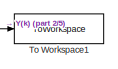
[diagram: root canvas - part 1/5, top right region]
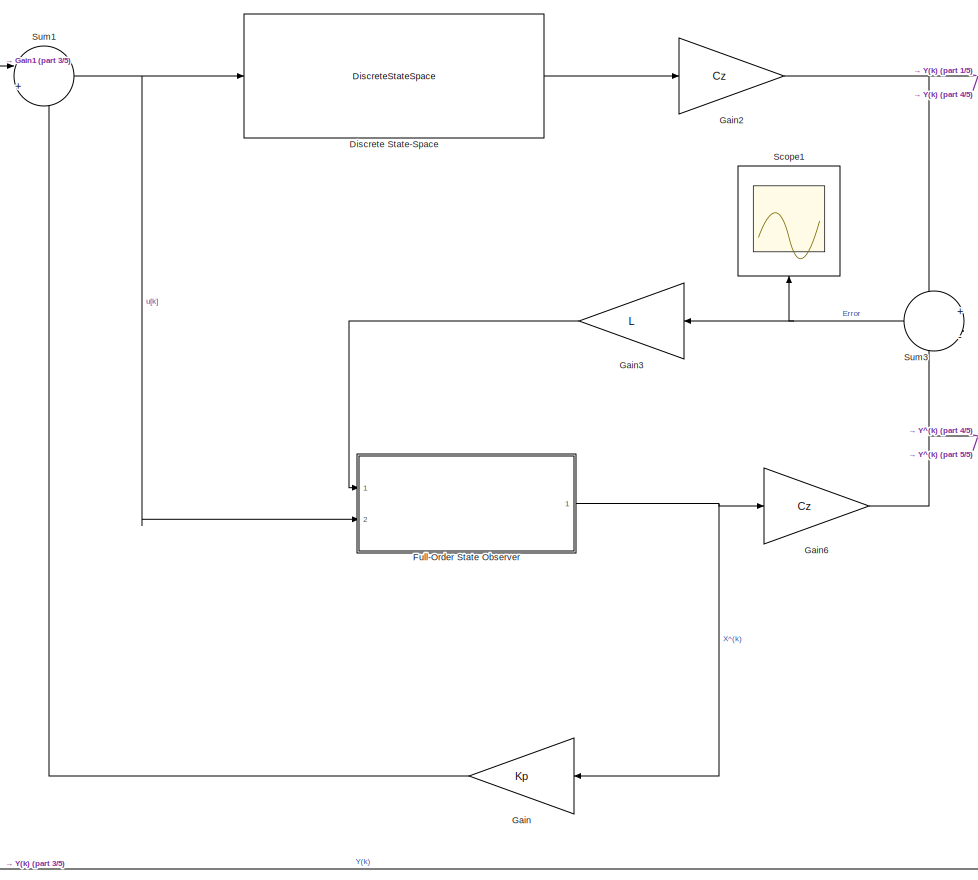
[diagram: root canvas - part 2/5, center side, full height]
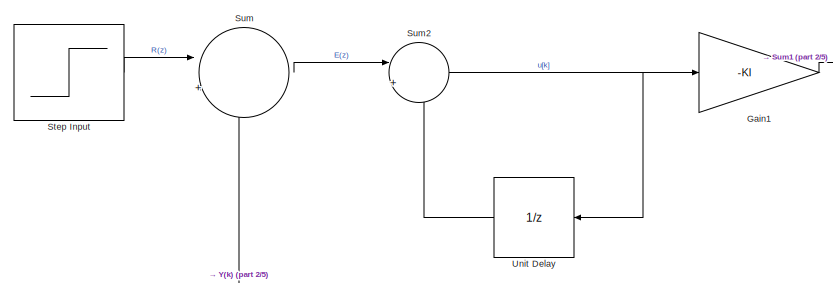
[diagram: root canvas - part 3/5, top left region]
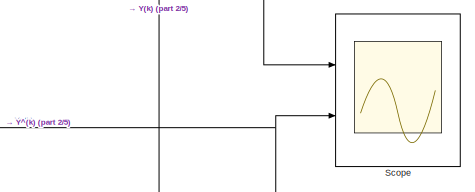
[diagram: root canvas - part 4/5, middle right region]
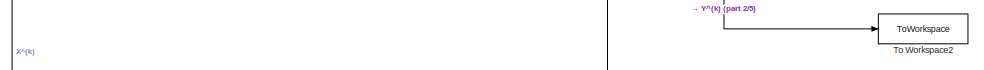
[diagram: root canvas - part 5/5, bottom right region]
MODEL slx_e2bb6cb7402f
KIND model
CONFIG AbsTol = auto
CONFIG EnableMultiTasking = off
CONFIG FixedStep = auto
CONFIG MaxStep = auto
CONFIG MinStep = auto
CONFIG RelTol = 1e-3
CONFIG SampleTimeConstraint = Unconstrained
CONFIG SolverName = ode45
CONFIG StartTime = 0.0
CONFIG StopTime = 1
BLOCK [DiscreteStateSpace] Discrete State-Space
  A = G
  B = H
  C = eye(3)
  D = zeros(3,1)
  SampleTime = Ts
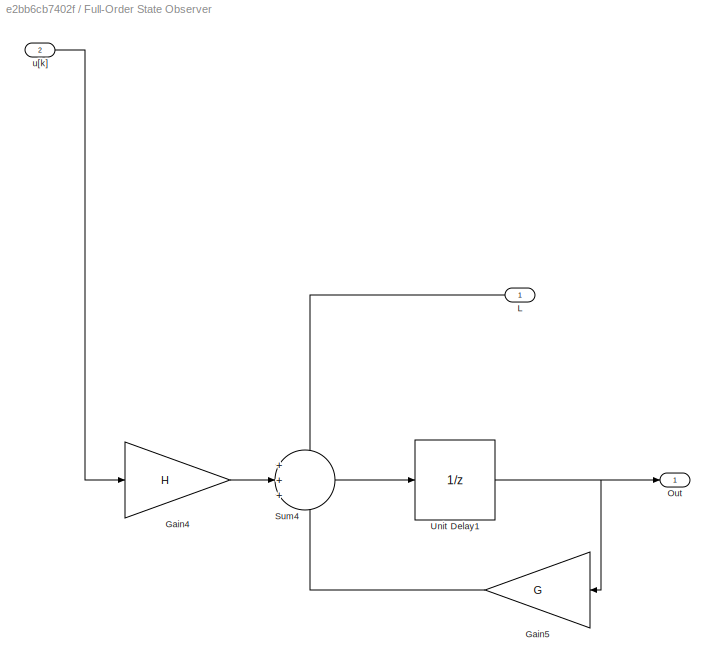
BLOCK [SubSystem] Full-Order State Observer
  Ports = [2, 1]
  RequestExecContextInheritance = off
BLOCK [Gain] Full-Order State Observer/Gain4
  Gain = H
  Multiplication = Matrix(K*u)
BLOCK [Gain] Full-Order State Observer/Gain5
  Gain = G
  Multiplication = Matrix(K*u)
  NameLocation = top
BLOCK [Inport] Full-Order State Observer/L
BLOCK [Outport] Full-Order State Observer/Out
BLOCK [Sum] Full-Order State Observer/Sum4
  Inputs = +++
  Ports = [3, 1]
BLOCK [UnitDelay] Full-Order State Observer/Unit Delay1
  HasFrameUpgradeWarning = on
  NameLocation = top
  SampleTime = -1
BLOCK [Inport] Full-Order State Observer/u[k]
  Port = 2
BLOCK [Gain] Gain
  Gain = Kp
  Multiplication = Matrix(K*u)
  NameLocation = top
BLOCK [Gain] Gain1
  Gain = -KI
BLOCK [Gain] Gain2
  Gain = Cz
  Multiplication = Matrix(K*u)
BLOCK [Gain] Gain3
  Gain = L
  Multiplication = Matrix(K*u)
  NameLocation = top
BLOCK [Gain] Gain6
  Gain = Cz
  Multiplication = Matrix(K*u)
BLOCK [Scope] Scope
  Floating = off
  NumInputPorts = 2
  Ports = [2]
  ScopeSpecificationString = Simulink.scopes.TimeScopeBlockCfg('CurrentConfiguration', extmgr.ConfigurationSet(extmgr.Configuration('Core','General UI',true),extmgr.Configuration('Core','Source UI',true),extmgr.Configuration('Sources','WiredSimulink',true),extmgr.Configuration('Visuals','Time Domain',true,'SerializedDisplays',{struct('MinYLimReal','-0.00135','MaxYLimReal','0.01213','YLabelReal','','MinYLimMag','0.00000','MaxY...<+1387ch>
BLOCK [Scope] Scope1
  Floating = off
  NameLocation = right
  NumInputPorts = 1
  Ports = [1]
  ScopeSpecificationString = Simulink.scopes.TimeScopeBlockCfg('CurrentConfiguration', extmgr.ConfigurationSet(extmgr.Configuration('Core','General UI',true),extmgr.Configuration('Core','Source UI',true),extmgr.Configuration('Sources','WiredSimulink',true,'DataLoggingVariableName','ScopeData1'),extmgr.Configuration('Visuals','Time Domain',true,'SerializedDisplays',{struct('MinYLimReal','-1.00000','MaxYLimReal','1.00000','YLab...<+1364ch>
BLOCK [Step] Step Input
  After = 0.01
  SampleTime = 0
  Time = 0
BLOCK [Sum] Sum
  Inputs = |+-
  Ports = [2, 1]
BLOCK [Sum] Sum1
  Inputs = |+-
  Ports = [2, 1]
BLOCK [Sum] Sum2
  Inputs = |++
  Ports = [2, 1]
BLOCK [Sum] Sum3
  Inputs = +|-
  Ports = [2, 1]
BLOCK [ToWorkspace] To Workspace1
  FixptAsFi = on
  MaxDataPoints = inf
  Ports = [1]
  SampleTime = -1
  SaveFormat = Timeseries
  VariableName = Y_servo_obs
BLOCK [ToWorkspace] To Workspace2
  FixptAsFi = on
  MaxDataPoints = inf
  Ports = [1]
  SampleTime = -1
  SaveFormat = Timeseries
  VariableName = Y_hat_servo_obs
BLOCK [UnitDelay] Unit Delay
  HasFrameUpgradeWarning = on
  NameLocation = top
  SampleTime = -1
LINE Discrete State-Space:1 -> Gain2:1
LINE Full-Order State Observer/Gain4:1 -> Full-Order State Observer/Sum4:2
LINE Full-Order State Observer/Gain5:1 -> Full-Order State Observer/Sum4:3
LINE Full-Order State Observer/L:1 -> Full-Order State Observer/Sum4:1
LINE Full-Order State Observer/Sum4:1 -> Full-Order State Observer/Unit Delay1:1
NET Full-Order State Observer/Unit Delay1:1 -> Full-Order State Observer/Gain5:1, Full-Order State Observer/Out:1
LINE Full-Order State Observer/u[k]:1 -> Full-Order State Observer/Gain4:1
NET Full-Order State Observer:1 -> Gain6:1, Gain:1
LINE Gain1:1 -> Sum1:1
NET Gain2:1 -> Scope:1, Sum3:1, Sum:2, To Workspace1:1
LINE Gain3:1 -> Full-Order State Observer:1
NET Gain6:1 -> Scope:2, Sum3:2, To Workspace2:1
LINE Gain:1 -> Sum1:2
LINE Step Input:1 -> Sum:1
NET Sum1:1 -> Discrete State-Space:1, Full-Order State Observer:2
NET Sum2:1 -> Gain1:1, Unit Delay:1
NET Sum3:1 -> Gain3:1, Scope1:1
LINE Sum:1 -> Sum2:1
LINE Unit Delay:1 -> Sum2:2
note: NET lines group one-source signal fan-out (src -> all destinations, sorted); 1:1 wires keep LINE
